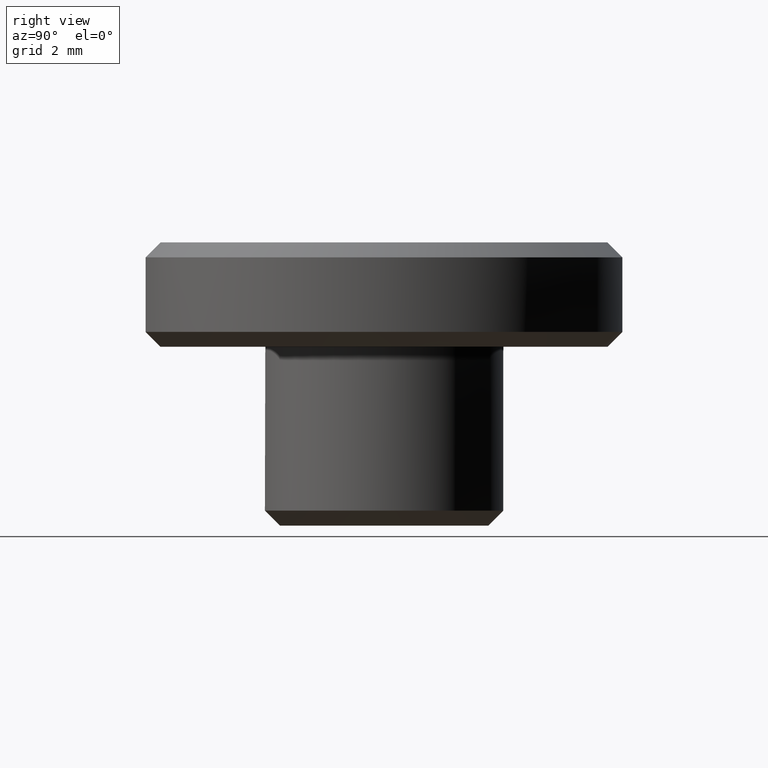
[diagram: clean part render]
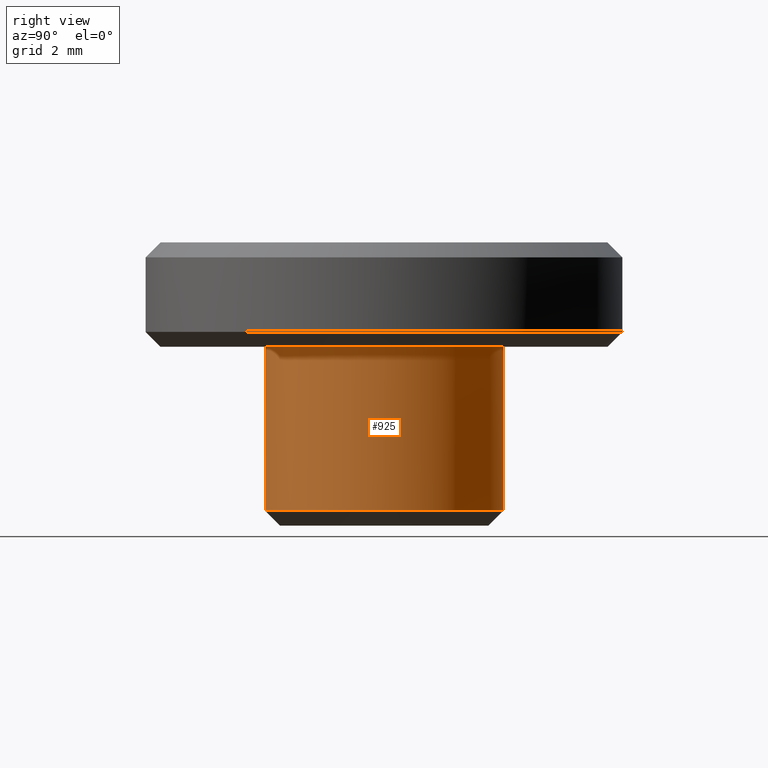
[diagram: same view with one face highlighted and labeled with its STEP entity id]
A machine part, right view. The second image highlights one B-rep face of the part: STEP entity #925.
In plain terms, the highlighted face is a freeform B-spline surface patch.
Its self-contained STEP definition (entity closure, byte-faithful):
#500=CARTESIAN_POINT('',(0.496510696364964,-3.969065019421251,0.499999999999956));
#501=VERTEX_POINT('',#500);
#558=CARTESIAN_POINT('',(-0.034904604637149,3.999847705671220,0.499999999999363));
#559=VERTEX_POINT('',#558);
#565=CARTESIAN_POINT('',(3.999999999999990,0.0,0.499999999999945));
#566=VERTEX_POINT('',#565);
#567=CARTESIAN_POINT('',(3.999999999999990,0.0,0.499999999999945));
#568=CARTESIAN_POINT('',(3.999999999999990,4.000000000000000,0.499999999999945));
#569=CARTESIAN_POINT('',(-1.065814E-014,4.0,0.499999999999945));
#570=CARTESIAN_POINT('',(-0.017452634560741,4.0,0.499999999999945));
#571=CARTESIAN_POINT('',(-0.034904604637149,3.999847705671220,0.499999999999363));
#579=(BOUNDED_CURVE()B_SPLINE_CURVE(2,(#567,#568,#569,#570,#571),.UNSPECIFIED.,.F.,.U.)B_SPLINE_CURVE_WITH_KNOTS((3,2,3),(0.500000000000000,0.750000000000000,0.751539826633849),.UNSPECIFIED.)CURVE()GEOMETRIC_REPRESENTATION_ITEM()RATIONAL_B_SPLINE_CURVE((1.0,0.707106781186548,1.0,0.998195980883189,0.996414184779850))REPRESENTATION_ITEM(''));
#580=EDGE_CURVE('',#566,#559,#579,.T.);
#582=CARTESIAN_POINT('',(0.496510696364964,-3.969065019421251,0.499999999999956));
#583=CARTESIAN_POINT('',(3.999999999999990,-3.530795576783641,0.499999999999945));
#584=CARTESIAN_POINT('',(3.999999999999990,0.0,0.499999999999945));
#592=(BOUNDED_CURVE()B_SPLINE_CURVE(2,(#582,#583,#584),.UNSPECIFIED.,.F.,.U.)B_SPLINE_CURVE_WITH_KNOTS((3,3),(0.271473873225641,0.500000000000000),.UNSPECIFIED.)CURVE()GEOMETRIC_REPRESENTATION_ITEM()RATIONAL_B_SPLINE_CURVE((0.954005538454358,0.732264988584347,1.0))REPRESENTATION_ITEM(''));
#593=EDGE_CURVE('',#501,#566,#592,.T.);
#859=CARTESIAN_POINT('',(0.496512008319306,-3.969064855302155,0.362499999999943));
#860=CARTESIAN_POINT('',(4.030931322009768,-3.526925032532884,0.362499999999943));
#861=CARTESIAN_POINT('',(3.999847692256673,0.034906141993496,0.362499999999943));
#862=CARTESIAN_POINT('',(3.964941550263179,4.034753834250179,0.362499999999943));
#863=CARTESIAN_POINT('',(-0.034906141993506,3.999847692256684,0.362499999999943));
#864=CARTESIAN_POINT('',(0.496512008319306,-3.969064855302155,6.140937500000002));
#865=CARTESIAN_POINT('',(4.030931322009768,-3.526925032532884,6.140937500000003));
#866=CARTESIAN_POINT('',(3.999847692256673,0.034906141993496,6.140937500000002));
#867=CARTESIAN_POINT('',(3.964941550263179,4.034753834250179,6.140937500000002));
#868=CARTESIAN_POINT('',(-0.034906141993506,3.999847692256684,6.140937500000002));
#876=(BOUNDED_SURFACE()B_SPLINE_SURFACE(2,1,((#859,#864),(#860,#865),(#861,#866),(#862,#867),(#863,#868)),.UNSPECIFIED.,.F.,.F.,.U.)B_SPLINE_SURFACE_WITH_KNOTS((3,2,3),(2,2),(0.0,6.097223638131957,12.724640636101480),(0.0,5.778437500000059),.UNSPECIFIED.)GEOMETRIC_REPRESENTATION_ITEM()RATIONAL_B_SPLINE_SURFACE(((0.956886118190660,0.956886118190660),(0.730538238691624,0.730538238691624),(1.0,1.0),(0.707106781186548,0.707106781186548),(1.0,1.0)))REPRESENTATION_ITEM('')SURFACE());
#877=ORIENTED_EDGE('',*,*,#593,.T.);
#878=ORIENTED_EDGE('',*,*,#580,.T.);
#879=CARTESIAN_POINT('',(-0.034902881422557,3.999847720708598,6.000000000000001));
#880=VERTEX_POINT('',#879);
#881=CARTESIAN_POINT('',(-0.034904604637149,3.999847705671220,0.499999999999363));
#882=CARTESIAN_POINT('',(-0.034902881422557,3.999847720708598,6.000000000000001));
#883=QUASI_UNIFORM_CURVE('',1,(#881,#882),.UNSPECIFIED.,.F.,.U.);
#884=EDGE_CURVE('',#559,#880,#883,.T.);
#885=ORIENTED_EDGE('',*,*,#884,.T.);
#886=CARTESIAN_POINT('',(3.999999999999990,0.0,6.0));
#887=VERTEX_POINT('',#886);
#888=CARTESIAN_POINT('',(-0.034902881422557,3.999847720708598,6.000000000000001));
#889=CARTESIAN_POINT('',(-0.017451772904238,4.000000000000001,6.0));
#890=CARTESIAN_POINT('',(-1.065814E-014,4.0,6.0));
#891=CARTESIAN_POINT('',(3.999999999999990,4.000000000000000,6.0));
#892=CARTESIAN_POINT('',(3.999999999999990,0.0,6.0));
#900=(BOUNDED_CURVE()B_SPLINE_CURVE(2,(#888,#889,#890,#891,#892),.UNSPECIFIED.,.F.,.U.)B_SPLINE_CURVE_WITH_KNOTS((3,2,3),(0.248460249252010,0.250000000000000,0.500000000000000),.UNSPECIFIED.)CURVE()GEOMETRIC_REPRESENTATION_ITEM()RATIONAL_B_SPLINE_CURVE((0.996414360401140,0.998196069789003,1.0,0.707106781186548,1.0))REPRESENTATION_ITEM(''));
#901=EDGE_CURVE('',#880,#887,#900,.T.);
#902=ORIENTED_EDGE('',*,*,#901,.T.);
#903=CARTESIAN_POINT('',(0.496507199149395,-3.969065456901576,6.0));
#904=VERTEX_POINT('',#903);
#905=CARTESIAN_POINT('',(3.999999999999990,0.0,6.0));
#906=CARTESIAN_POINT('',(3.999999999999990,-3.530798712080334,6.0));
#907=CARTESIAN_POINT('',(0.496507199149395,-3.969065456901576,6.0));
#915=(BOUNDED_CURVE()B_SPLINE_CURVE(2,(#905,#906,#907),.UNSPECIFIED.,.F.,.U.)B_SPLINE_CURVE_WITH_KNOTS((3,3),(0.500000000000000,0.728526275371378),.UNSPECIFIED.)CURVE()GEOMETRIC_REPRESENTATION_ITEM()RATIONAL_B_SPLINE_CURVE((1.0,0.732264814492111,0.954005826824084))REPRESENTATION_ITEM(''));
#916=EDGE_CURVE('',#887,#904,#915,.T.);
#917=ORIENTED_EDGE('',*,*,#916,.T.);
#918=CARTESIAN_POINT('',(0.496510696364964,-3.969065019421251,0.499999999999956));
#919=CARTESIAN_POINT('',(0.496507199149395,-3.969065456901576,6.0));
#920=QUASI_UNIFORM_CURVE('',1,(#918,#919),.UNSPECIFIED.,.F.,.U.);
#921=EDGE_CURVE('',#501,#904,#920,.T.);
#922=ORIENTED_EDGE('',*,*,#921,.F.);
#923=EDGE_LOOP('',(#877,#878,#885,#902,#917,#922));
#924=FACE_OUTER_BOUND('',#923,.T.);
#925=ADVANCED_FACE('',(#924),#876,.T.);